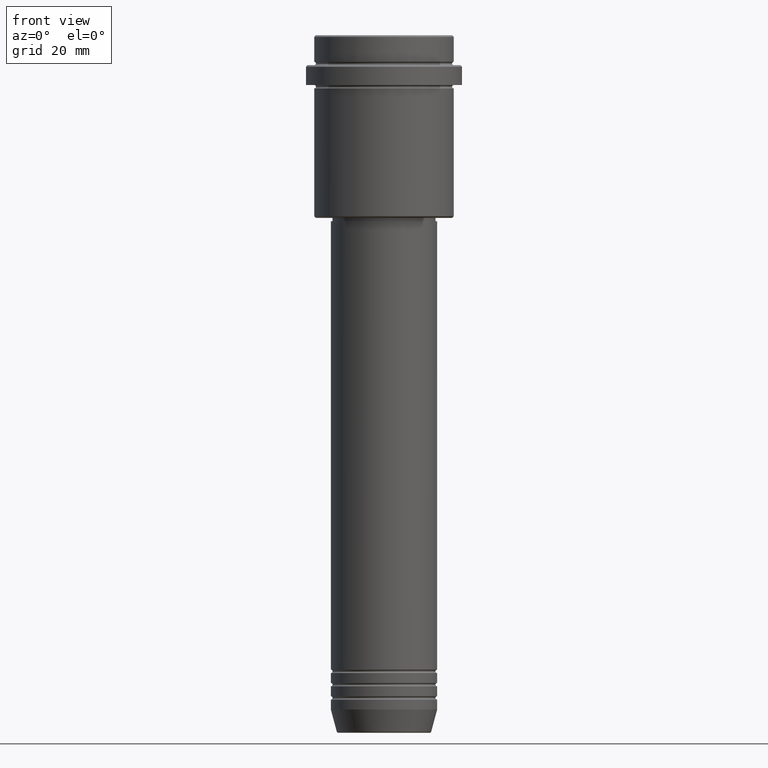
[diagram: clean part render]
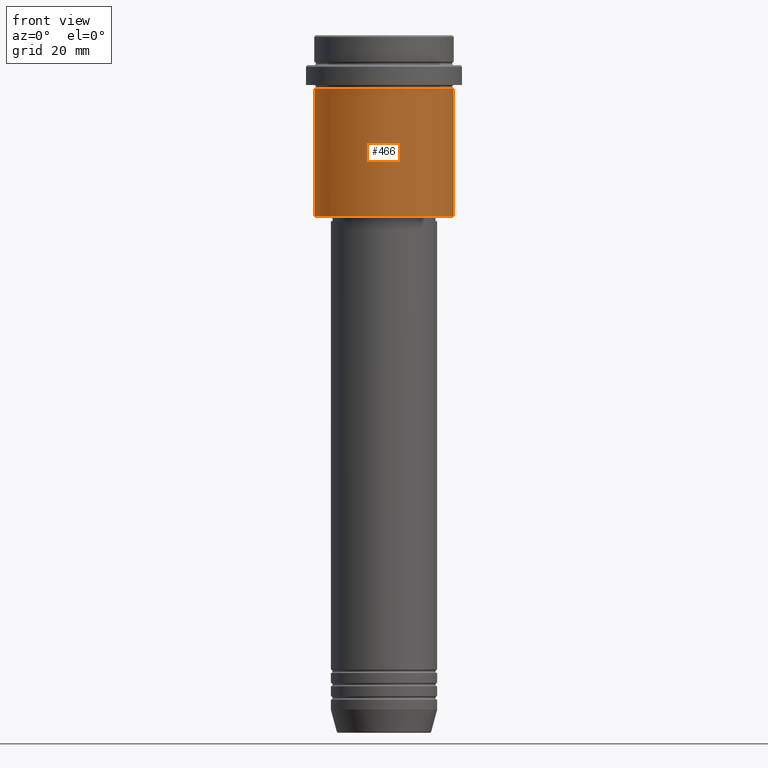
[diagram: same view with one face highlighted and labeled with its STEP entity id]
A machine part, front view. The second image highlights one B-rep face of the part: STEP entity #466.
In plain terms, the highlighted cylindrical surface (partial cylindrical patch) has radius 21 mm, axis along (-0, -0, 1).
Its self-contained STEP definition (entity closure, byte-faithful):
#116 = EDGE_LOOP ( 'NONE', ( #783, #894, #1217, #997 ) ) ;
#140 = FACE_OUTER_BOUND ( 'NONE', #116, .T. ) ;
#175 = AXIS2_PLACEMENT_3D ( 'NONE', #224, #1330, #1114 ) ;
#215 = CIRCLE ( 'NONE', #460, 20.99999999999999645 ) ;
#224 = CARTESIAN_POINT ( 'NONE',  ( 0.000000000000000000, 0.000000000000000000, -16.00000000000000355 ) ) ;
#272 = CARTESIAN_POINT ( 'NONE',  ( 0.000000000000000000, 0.000000000000000000, -54.50000000000003553 ) ) ;
#313 = EDGE_CURVE ( 'NONE', #1274, #1243, #215, .T. ) ;
#347 = EDGE_CURVE ( 'NONE', #1243, #1198, #731, .T. ) ;
#374 = DIRECTION ( 'NONE',  ( -0.000000000000000000, -0.000000000000000000, 1.000000000000000000 ) ) ;
#429 = CARTESIAN_POINT ( 'NONE',  ( -20.99999999999999645, 2.571758278209441267E-15, -54.50000000000003553 ) ) ;
#445 = DIRECTION ( 'NONE',  ( -0.000000000000000000, -0.000000000000000000, 1.000000000000000000 ) ) ;
#460 = AXIS2_PLACEMENT_3D ( 'NONE', #272, #838, #1349 ) ;
#466 = ADVANCED_FACE ( 'NONE', ( #140 ), #815, .T. ) ;
#526 = VECTOR ( 'NONE', #1067, 1000.000000000000000 ) ;
#624 = CARTESIAN_POINT ( 'NONE',  ( 20.99999999999999645, 0.000000000000000000, -16.00000000000000355 ) ) ;
#641 = CARTESIAN_POINT ( 'NONE',  ( -20.99999999999999645, 2.571758278209441267E-15, -16.00000000000000355 ) ) ;
#703 = CARTESIAN_POINT ( 'NONE',  ( 20.99999999999999645, 0.000000000000000000, 0.000000000000000000 ) ) ;
#717 = AXIS2_PLACEMENT_3D ( 'NONE', #847, #445, #1312 ) ;
#731 = LINE ( 'NONE', #703, #526 ) ;
#747 = CARTESIAN_POINT ( 'NONE',  ( -20.99999999999999645, 2.571758278209441267E-15, 0.000000000000000000 ) ) ;
#783 = ORIENTED_EDGE ( 'NONE', *, *, #1030, .F. ) ;
#808 = CIRCLE ( 'NONE', #175, 20.99999999999999645 ) ;
#815 = CYLINDRICAL_SURFACE ( 'NONE', #717, 20.99999999999999645 ) ;
#835 = EDGE_CURVE ( 'NONE', #1176, #1198, #808, .T. ) ;
#838 = DIRECTION ( 'NONE',  ( -0.000000000000000000, -0.000000000000000000, 1.000000000000000000 ) ) ;
#847 = CARTESIAN_POINT ( 'NONE',  ( 0.000000000000000000, 0.000000000000000000, 0.000000000000000000 ) ) ;
#849 = CARTESIAN_POINT ( 'NONE',  ( 20.99999999999999645, 0.000000000000000000, -54.50000000000003553 ) ) ;
#894 = ORIENTED_EDGE ( 'NONE', *, *, #313, .T. ) ;
#997 = ORIENTED_EDGE ( 'NONE', *, *, #835, .F. ) ;
#1030 = EDGE_CURVE ( 'NONE', #1274, #1176, #1391, .T. ) ;
#1066 = VECTOR ( 'NONE', #374, 1000.000000000000000 ) ;
#1067 = DIRECTION ( 'NONE',  ( -0.000000000000000000, -0.000000000000000000, 1.000000000000000000 ) ) ;
#1114 = DIRECTION ( 'NONE',  ( 1.000000000000000000, 0.000000000000000000, 0.000000000000000000 ) ) ;
#1176 = VERTEX_POINT ( 'NONE', #641 ) ;
#1198 = VERTEX_POINT ( 'NONE', #624 ) ;
#1217 = ORIENTED_EDGE ( 'NONE', *, *, #347, .T. ) ;
#1243 = VERTEX_POINT ( 'NONE', #849 ) ;
#1274 = VERTEX_POINT ( 'NONE', #429 ) ;
#1312 = DIRECTION ( 'NONE',  ( 1.000000000000000000, 0.000000000000000000, 0.000000000000000000 ) ) ;
#1330 = DIRECTION ( 'NONE',  ( -0.000000000000000000, -0.000000000000000000, 1.000000000000000000 ) ) ;
#1349 = DIRECTION ( 'NONE',  ( -1.000000000000000000, 0.000000000000000000, 0.000000000000000000 ) ) ;
#1391 = LINE ( 'NONE', #747, #1066 ) ;